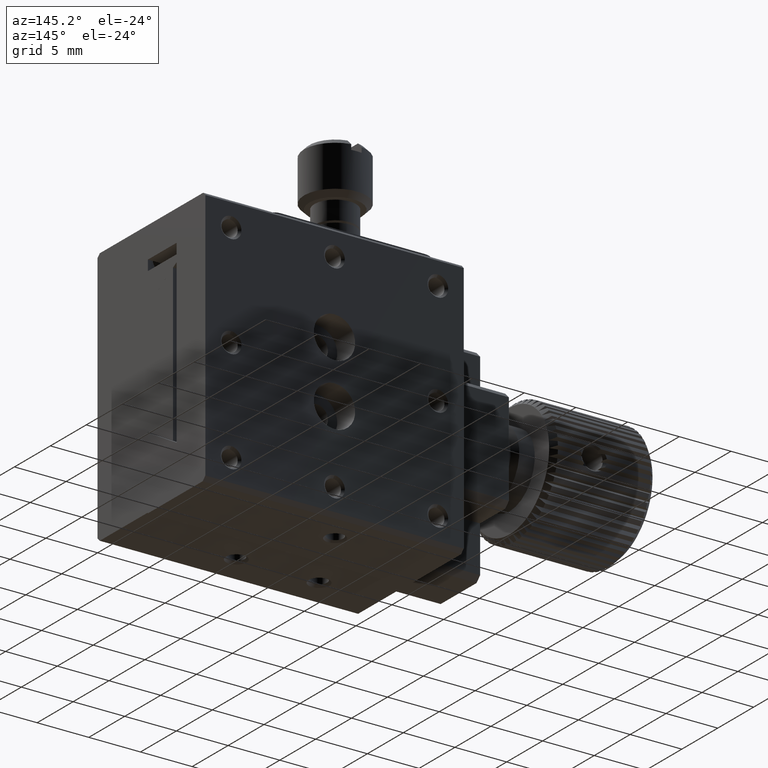
[diagram: clean part render]
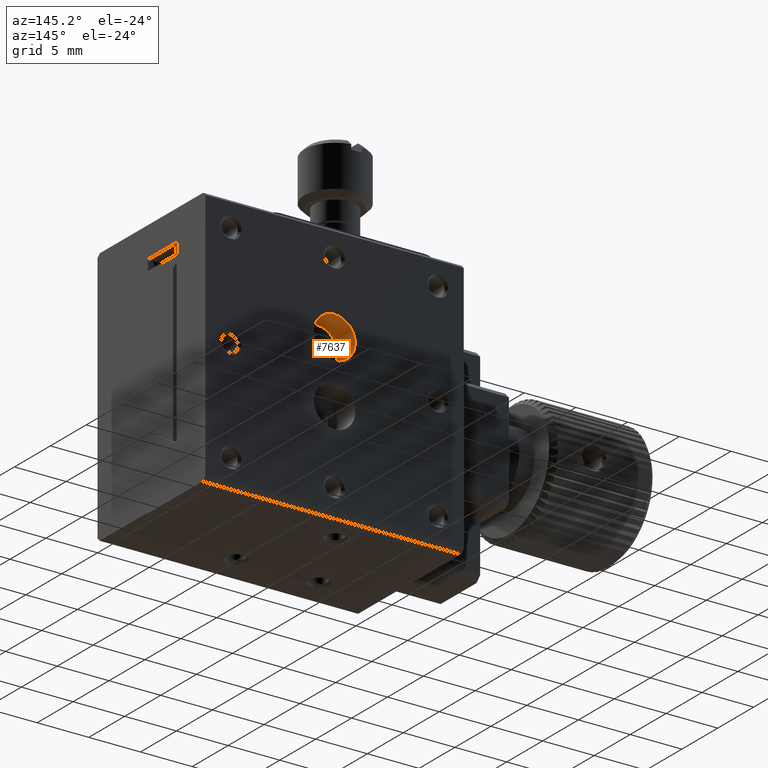
[diagram: same view with one face highlighted and labeled with its STEP entity id]
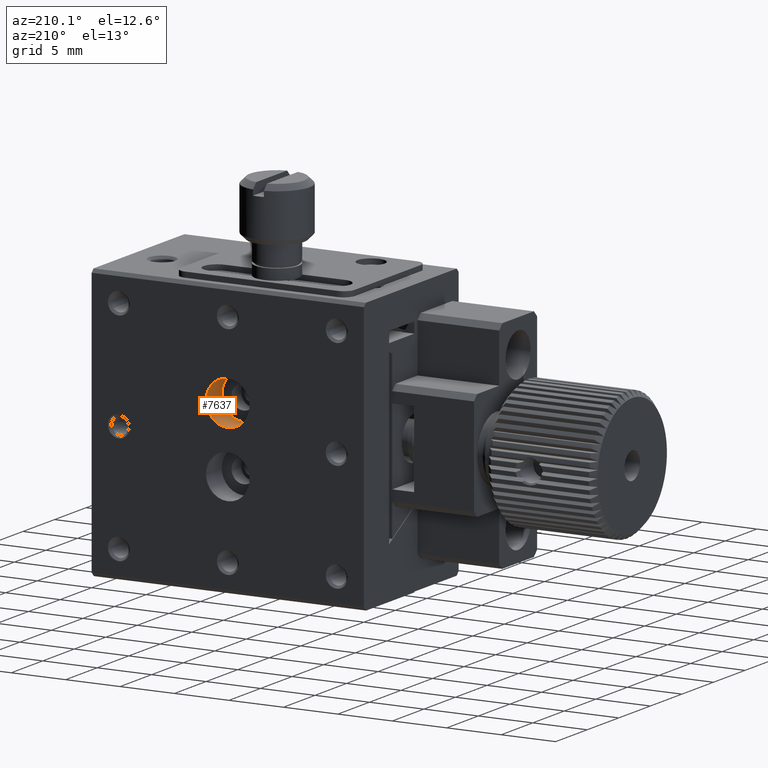
[diagram: same view with one face highlighted and labeled with its STEP entity id]
A machine part, auxiliary view. The second image highlights one B-rep face of the part: STEP entity #7637.
A second angle (auxiliary view) of the same face is appended — the face is thin or edge-on in the first view.
In plain terms, the highlighted cylindrical surface (bore or boss wall) has radius 2 mm, axis along (0, -1, 0).
Its self-contained STEP definition (entity closure, byte-faithful):
#249 = CIRCLE ( 'NONE', #8277, 2.000000000000000000 ) ;
#482 = CIRCLE ( 'NONE', #5354, 2.000000000000000000 ) ;
#1082 = DIRECTION ( 'NONE',  ( -0.000000000000000000, 1.000000000000000000, -0.000000000000000000 ) ) ;
#1235 = EDGE_LOOP ( 'NONE', ( #12784 ) ) ;
#1372 = EDGE_CURVE ( 'NONE', #4258, #4258, #482, .T. ) ;
#1716 = CARTESIAN_POINT ( 'NONE',  ( 12.50000000000000000, 12.50000000000000000, -11.50000000000000000 ) ) ;
#1826 = AXIS2_PLACEMENT_3D ( 'NONE', #6376, #3322, #10378 ) ;
#2175 = EDGE_CURVE ( 'NONE', #11650, #11650, #249, .T. ) ;
#3322 = DIRECTION ( 'NONE',  ( 0.000000000000000000, -1.000000000000000000, 0.000000000000000000 ) ) ;
#4014 = CARTESIAN_POINT ( 'NONE',  ( 12.50000000000000000, 12.50000000000000000, -9.500000000000000000 ) ) ;
#4258 = VERTEX_POINT ( 'NONE', #12503 ) ;
#4320 = FACE_OUTER_BOUND ( 'NONE', #7043, .T. ) ;
#4668 = ORIENTED_EDGE ( 'NONE', *, *, #2175, .F. ) ;
#5354 = AXIS2_PLACEMENT_3D ( 'NONE', #6166, #9299, #11090 ) ;
#5385 = CYLINDRICAL_SURFACE ( 'NONE', #1826, 2.000000000000000000 ) ;
#6166 = CARTESIAN_POINT ( 'NONE',  ( 12.50000000000000000, 15.00000000000000000, -9.500000000000000000 ) ) ;
#6376 = CARTESIAN_POINT ( 'NONE',  ( 12.50000000000000000, 7.399139380972439284, -9.500000000000000000 ) ) ;
#7043 = EDGE_LOOP ( 'NONE', ( #4668 ) ) ;
#7637 = ADVANCED_FACE ( 'NONE', ( #9124, #4320 ), #5385, .F. ) ;
#8277 = AXIS2_PLACEMENT_3D ( 'NONE', #4014, #1082, #9940 ) ;
#9124 = FACE_OUTER_BOUND ( 'NONE', #1235, .T. ) ;
#9299 = DIRECTION ( 'NONE',  ( -0.000000000000000000, 1.000000000000000000, -0.000000000000000000 ) ) ;
#9940 = DIRECTION ( 'NONE',  ( 0.000000000000000000, 0.000000000000000000, -1.000000000000000000 ) ) ;
#10378 = DIRECTION ( 'NONE',  ( 0.000000000000000000, 0.000000000000000000, -1.000000000000000000 ) ) ;
#11090 = DIRECTION ( 'NONE',  ( 0.000000000000000000, 0.000000000000000000, -1.000000000000000000 ) ) ;
#11650 = VERTEX_POINT ( 'NONE', #1716 ) ;
#12503 = CARTESIAN_POINT ( 'NONE',  ( 12.50000000000000000, 15.00000000000000000, -11.50000000000000000 ) ) ;
#12784 = ORIENTED_EDGE ( 'NONE', *, *, #1372, .T. ) ;